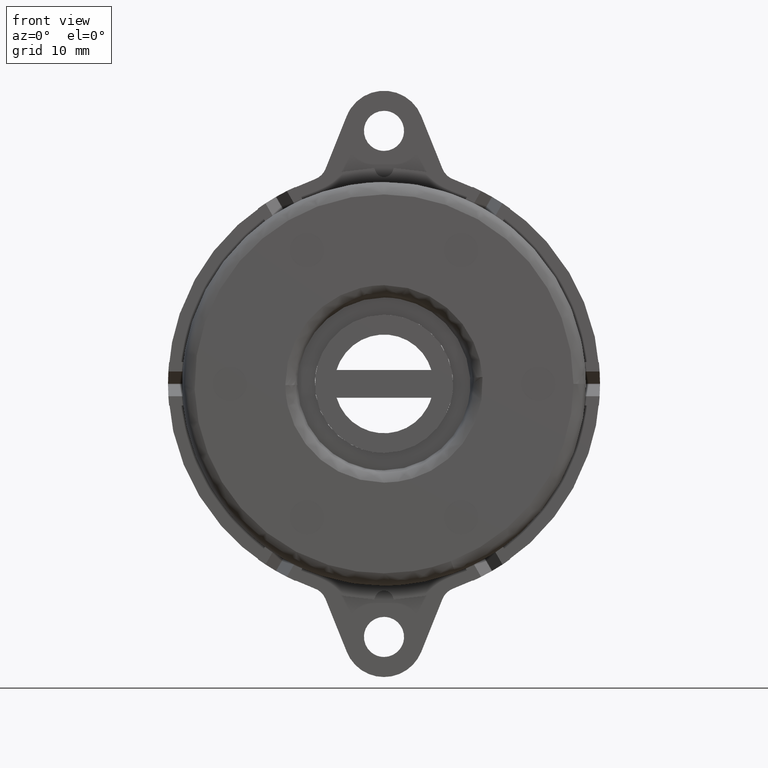
[diagram: clean part render]
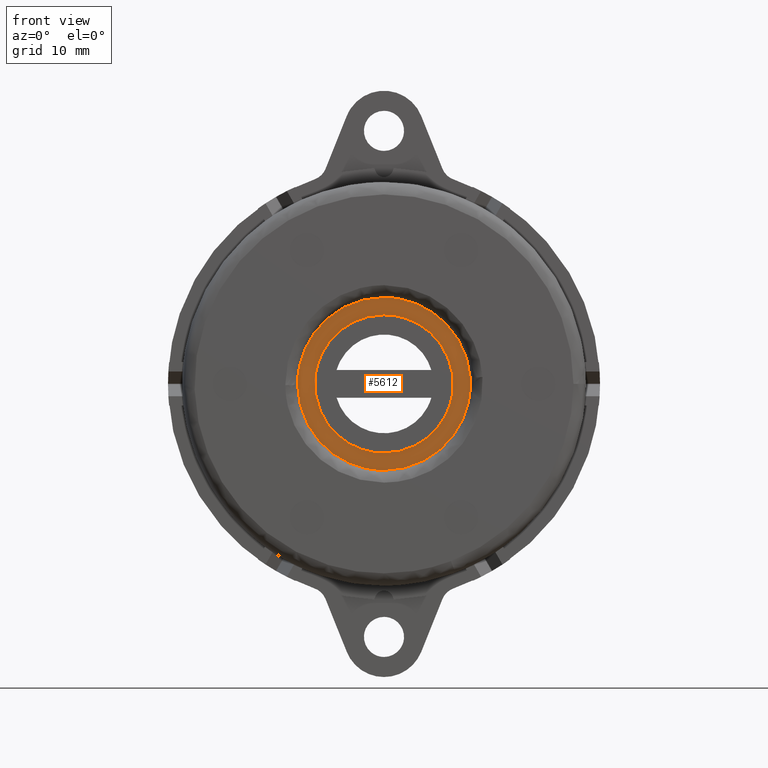
[diagram: same view with one face highlighted and labeled with its STEP entity id]
A machine part, front view. The second image highlights one B-rep face of the part: STEP entity #5612.
In plain terms, the highlighted face is a freeform B-spline surface patch.
Its self-contained STEP definition (entity closure, byte-faithful):
#530=CARTESIAN_POINT('',(11.121706695261770,-9.299999999999999,-1.321983428250701));
#531=VERTEX_POINT('',#530);
#537=CARTESIAN_POINT('',(0.0,-9.299999999999999,11.199999999999999));
#538=VERTEX_POINT('',#537);
#539=CARTESIAN_POINT('',(11.121706695261773,-9.299999999999999,-1.321983428250701));
#540=CARTESIAN_POINT('',(11.199999999999996,-9.299999999999997,-0.663310140197403));
#541=CARTESIAN_POINT('',(11.199999999999999,-9.299999999999999,-9.985231E-016));
#542=CARTESIAN_POINT('',(11.199999999999999,-9.300000000000001,11.199999999999999));
#543=CARTESIAN_POINT('',(0.0,-9.299999999999999,11.199999999999999));
#551=(BOUNDED_CURVE()B_SPLINE_CURVE(2,(#539,#540,#541,#542,#543),.UNSPECIFIED.,.F.,.U.)B_SPLINE_CURVE_WITH_KNOTS((3,2,3),(0.229562473512757,0.250000000000000,0.500000000000000),.UNSPECIFIED.)CURVE()GEOMETRIC_REPRESENTATION_ITEM()RATIONAL_B_SPLINE_CURVE((0.956026754182226,0.976055948330265,1.0,0.707106781186547,1.0))REPRESENTATION_ITEM(''));
#552=EDGE_CURVE('',#531,#538,#551,.T.);
#554=CARTESIAN_POINT('',(-11.179109742317840,-9.300000000000001,0.683743642906014));
#555=VERTEX_POINT('',#554);
#556=CARTESIAN_POINT('',(0.0,-9.299999999999999,11.199999999999999));
#557=CARTESIAN_POINT('',(-10.535907949125420,-9.299999999999999,11.199999999999999));
#558=CARTESIAN_POINT('',(-11.179109742317836,-9.300000000000001,0.683743642906014));
#566=(BOUNDED_CURVE()B_SPLINE_CURVE(2,(#556,#557,#558),.UNSPECIFIED.,.F.,.U.)B_SPLINE_CURVE_WITH_KNOTS((3,3),(0.500000000000000,0.739332962238399),.UNSPECIFIED.)CURVE()GEOMETRIC_REPRESENTATION_ITEM()RATIONAL_B_SPLINE_CURVE((1.0,0.719603993287347,0.976072041665552))REPRESENTATION_ITEM(''));
#567=EDGE_CURVE('',#538,#555,#566,.T.);
#641=CARTESIAN_POINT('',(0.0,-9.299999999999999,-11.199999999999999));
#642=VERTEX_POINT('',#641);
#643=CARTESIAN_POINT('',(-11.179109742317836,-9.300000000000001,0.683743642906014));
#644=CARTESIAN_POINT('',(-11.200000000000005,-9.299999999999999,0.342190949060135));
#645=CARTESIAN_POINT('',(-11.199999999999999,-9.299999999999999,-9.985231E-016));
#646=CARTESIAN_POINT('',(-11.199999999999999,-9.300000000000001,-11.200000000000001));
#647=CARTESIAN_POINT('',(0.0,-9.299999999999999,-11.199999999999999));
#655=(BOUNDED_CURVE()B_SPLINE_CURVE(2,(#643,#644,#645,#646,#647),.UNSPECIFIED.,.F.,.U.)B_SPLINE_CURVE_WITH_KNOTS((3,2,3),(0.739332962238399,0.750000000000000,1.0),.UNSPECIFIED.)CURVE()GEOMETRIC_REPRESENTATION_ITEM()RATIONAL_B_SPLINE_CURVE((0.976072041665553,0.987502787899200,1.0,0.707106781186547,1.0))REPRESENTATION_ITEM(''));
#656=EDGE_CURVE('',#555,#642,#655,.T.);
#658=CARTESIAN_POINT('',(0.0,-9.299999999999999,-11.199999999999999));
#659=CARTESIAN_POINT('',(9.947554690484163,-9.299999999999999,-11.200000000000003));
#660=CARTESIAN_POINT('',(11.121706695261766,-9.300000000000001,-1.321983428250700));
#668=(BOUNDED_CURVE()B_SPLINE_CURVE(2,(#658,#659,#660),.UNSPECIFIED.,.F.,.U.)B_SPLINE_CURVE_WITH_KNOTS((3,3),(0.0,0.229562473512757),.UNSPECIFIED.)CURVE()GEOMETRIC_REPRESENTATION_ITEM()RATIONAL_B_SPLINE_CURVE((1.0,0.731050832856283,0.956026754182226))REPRESENTATION_ITEM(''));
#669=EDGE_CURVE('',#642,#531,#668,.T.);
#4174=CARTESIAN_POINT('',(0.0,-9.299999999999999,-14.0));
#4175=VERTEX_POINT('',#4174);
#4176=CARTESIAN_POINT('',(13.965919433764460,-9.300000000409071,0.976265522078916));
#4177=VERTEX_POINT('',#4176);
#4178=CARTESIAN_POINT('',(0.0,-9.299999999999999,-14.0));
#4179=CARTESIAN_POINT('',(13.999999999999998,-9.300000000000001,-14.000000000000004));
#4180=CARTESIAN_POINT('',(14.0,-9.299999999999999,-9.985231E-016));
#4181=CARTESIAN_POINT('',(14.000000000000002,-9.299999999999999,0.488727622268770));
#4182=CARTESIAN_POINT('',(13.965919433764464,-9.300000000409071,0.976265522078916));
#4190=(BOUNDED_CURVE()B_SPLINE_CURVE(2,(#4178,#4179,#4180,#4181,#4182),.UNSPECIFIED.,.F.,.U.)B_SPLINE_CURVE_WITH_KNOTS((3,2,3),(0.0,0.250000000000000,0.262166313465425),.UNSPECIFIED.)CURVE()GEOMETRIC_REPRESENTATION_ITEM()RATIONAL_B_SPLINE_CURVE((1.0,0.707106781186547,1.0,0.985746277152073,0.972879876385883))REPRESENTATION_ITEM(''));
#4191=EDGE_CURVE('',#4175,#4177,#4190,.T.);
#4193=CARTESIAN_POINT('',(-13.998894618852550,-9.300000000415743,-0.175924558436423));
#4194=VERTEX_POINT('',#4193);
#4195=CARTESIAN_POINT('',(-13.998894618852546,-9.300000000415743,-0.175924558436423));
#4196=CARTESIAN_POINT('',(-13.825167018565143,-9.299999999999999,-14.000000000000005));
#4197=CARTESIAN_POINT('',(0.0,-9.299999999999999,-14.0));
#4205=(BOUNDED_CURVE()B_SPLINE_CURVE(2,(#4195,#4196,#4197),.UNSPECIFIED.,.F.,.U.)B_SPLINE_CURVE_WITH_KNOTS((3,3),(0.752215704080018,1.0),.UNSPECIFIED.)CURVE()GEOMETRIC_REPRESENTATION_ITEM()RATIONAL_B_SPLINE_CURVE((0.994854295639994,0.709702639986285,1.0))REPRESENTATION_ITEM(''));
#4206=EDGE_CURVE('',#4194,#4175,#4205,.T.);
#4294=CARTESIAN_POINT('',(0.0,-9.299999999999999,14.0));
#4295=VERTEX_POINT('',#4294);
#4296=CARTESIAN_POINT('',(13.965919433764466,-9.300000000409071,0.976265522078916));
#4297=CARTESIAN_POINT('',(13.055515861690077,-9.299999999999999,14.000000000000004));
#4298=CARTESIAN_POINT('',(0.0,-9.299999999999999,14.0));
#4306=(BOUNDED_CURVE()B_SPLINE_CURVE(2,(#4296,#4297,#4298),.UNSPECIFIED.,.F.,.U.)B_SPLINE_CURVE_WITH_KNOTS((3,3),(0.262166313465425,0.500000000000000),.UNSPECIFIED.)CURVE()GEOMETRIC_REPRESENTATION_ITEM()RATIONAL_B_SPLINE_CURVE((0.972879876385883,0.721360504034475,1.0))REPRESENTATION_ITEM(''));
#4307=EDGE_CURVE('',#4177,#4295,#4306,.T.);
#4341=CARTESIAN_POINT('',(0.0,-9.299999999999999,14.0));
#4342=CARTESIAN_POINT('',(-13.999999999999998,-9.300000000000001,13.999999999999998));
#4343=CARTESIAN_POINT('',(-14.0,-9.299999999999999,-9.985231E-016));
#4344=CARTESIAN_POINT('',(-14.0,-9.299999999999999,-0.087965751955996));
#4345=CARTESIAN_POINT('',(-13.998894618852550,-9.300000000415743,-0.175924558436423));
#4353=(BOUNDED_CURVE()B_SPLINE_CURVE(2,(#4341,#4342,#4343,#4344,#4345),.UNSPECIFIED.,.F.,.U.)B_SPLINE_CURVE_WITH_KNOTS((3,2,3),(0.500000000000000,0.750000000000000,0.752215704080019),.UNSPECIFIED.)CURVE()GEOMETRIC_REPRESENTATION_ITEM()RATIONAL_B_SPLINE_CURVE((1.0,0.707106781186547,1.0,0.997404141200261,0.994854295639992))REPRESENTATION_ITEM(''));
#4354=EDGE_CURVE('',#4295,#4194,#4353,.T.);
#5595=CARTESIAN_POINT('',(-15.397359861385629,-9.299999999999999,-15.398599945730570));
#5596=CARTESIAN_POINT('',(-15.397359861385629,-9.299999999999999,15.398600696749090));
#5597=CARTESIAN_POINT('',(15.396869101790321,-9.299999999999999,-15.398599945730570));
#5598=CARTESIAN_POINT('',(15.396869101790321,-9.299999999999999,15.398600696749090));
#5599=B_SPLINE_SURFACE_WITH_KNOTS('',1,1,((#5595,#5597),(#5596,#5598)),.UNSPECIFIED.,.F.,.F.,.U.,(2,2),(2,2),(0.0,30.797200642479659),(0.0,30.794228963175950),.UNSPECIFIED.);
#5600=ORIENTED_EDGE('',*,*,#4191,.T.);
#5601=ORIENTED_EDGE('',*,*,#4307,.T.);
#5602=ORIENTED_EDGE('',*,*,#4354,.T.);
#5603=ORIENTED_EDGE('',*,*,#4206,.T.);
#5604=EDGE_LOOP('',(#5600,#5601,#5602,#5603));
#5605=FACE_OUTER_BOUND('',#5604,.T.);
#5606=ORIENTED_EDGE('',*,*,#567,.F.);
#5607=ORIENTED_EDGE('',*,*,#552,.F.);
#5608=ORIENTED_EDGE('',*,*,#669,.F.);
#5609=ORIENTED_EDGE('',*,*,#656,.F.);
#5610=EDGE_LOOP('',(#5606,#5607,#5608,#5609));
#5611=FACE_BOUND('',#5610,.T.);
#5612=ADVANCED_FACE('',(#5605,#5611),#5599,.F.);